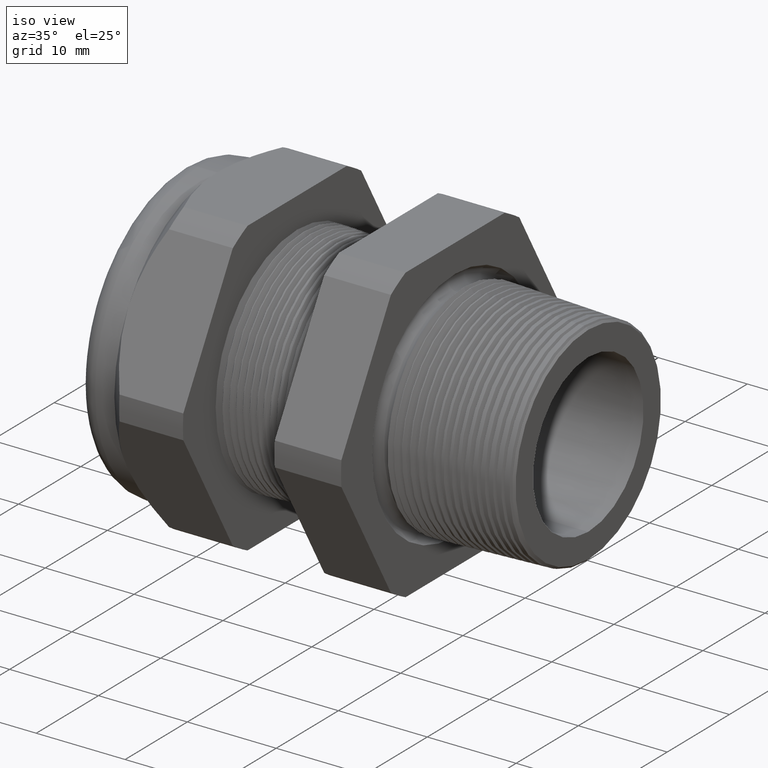
[diagram: clean part render]
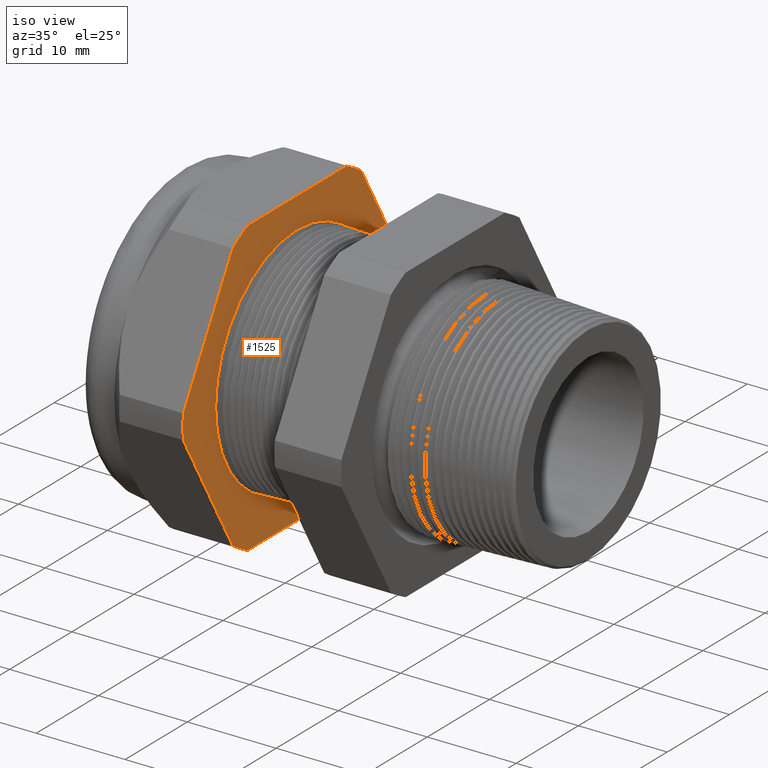
[diagram: same view with one face highlighted and labeled with its STEP entity id]
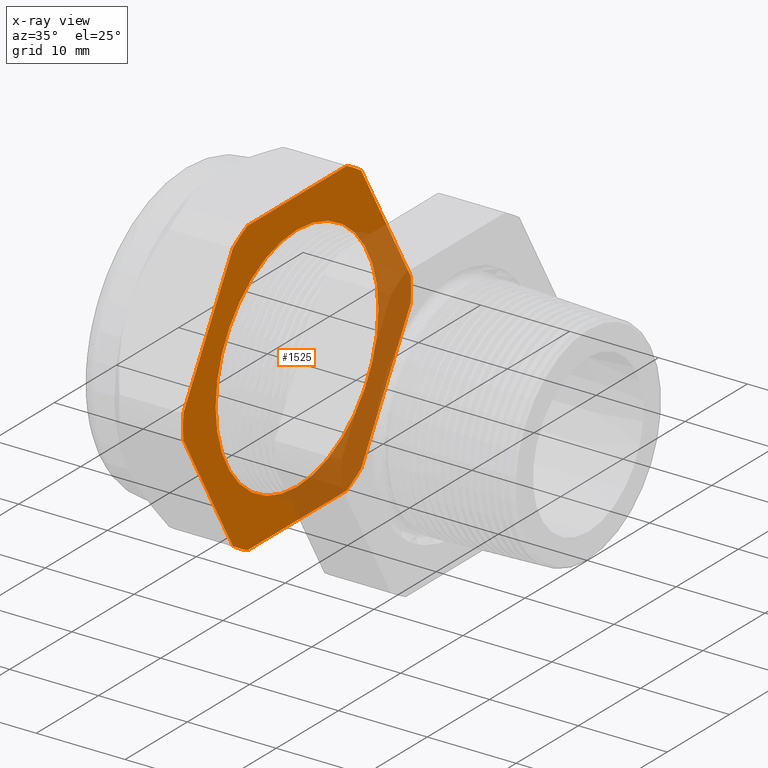
[diagram: x-ray of the same camera — body ghosted, the highlighted face saturated]
A machine part, iso view. The second image highlights one B-rep face of the part: STEP entity #1525.
The next image is the same camera in x-ray: the body ghosted, the highlighted face saturated — about 35% of this face is hidden behind the body in this view.
In plain terms, the highlighted planar face has unit normal (1, 0, 0).
Its self-contained STEP definition (entity closure, byte-faithful):
#19 = EDGE_CURVE ( 'NONE', #47, #22, #2037, .T. ) ;
#22 = VERTEX_POINT ( 'NONE', #2032 ) ;
#47 = VERTEX_POINT ( 'NONE', #2118 ) ;
#61 = VERTEX_POINT ( 'NONE', #2091 ) ;
#62 = EDGE_CURVE ( 'NONE', #22, #61, #2090, .T. ) ;
#265 = EDGE_CURVE ( 'NONE', #6162, #47, #2518, .T. ) ;
#333 = VERTEX_POINT ( 'NONE', #2688 ) ;
#340 = EDGE_CURVE ( 'NONE', #61, #333, #2677, .T. ) ;
#348 = EDGE_CURVE ( 'NONE', #333, #351, #2660, .T. ) ;
#351 = VERTEX_POINT ( 'NONE', #2714 ) ;
#365 = EDGE_CURVE ( 'NONE', #351, #371, #2732, .T. ) ;
#370 = VERTEX_POINT ( 'NONE', #2723 ) ;
#371 = VERTEX_POINT ( 'NONE', #2722 ) ;
#390 = EDGE_CURVE ( 'NONE', #371, #391, #2762, .T. ) ;
#391 = VERTEX_POINT ( 'NONE', #2758 ) ;
#397 = VERTEX_POINT ( 'NONE', #2803 ) ;
#506 = VERTEX_POINT ( 'NONE', #3023 ) ;
#507 = EDGE_CURVE ( 'NONE', #506, #509, #3022, .T. ) ;
#509 = VERTEX_POINT ( 'NONE', #3017 ) ;
#1445 = EDGE_LOOP ( 'NONE', ( #1446, #1448 ) ) ;
#1446 = ORIENTED_EDGE ( 'NONE', *, *, #1447, .F. ) ;
#1447 = EDGE_CURVE ( 'NONE', #509, #506, #4790, .T. ) ;
#1448 = ORIENTED_EDGE ( 'NONE', *, *, #507, .F. ) ;
#1449 = EDGE_LOOP ( 'NONE', ( #1450, #1451, #1511, #1512, #1513, #1514, #1515, #1516, #1517, #1518, #1519, #1520 ) ) ;
#1450 = ORIENTED_EDGE ( 'NONE', *, *, #265, .T. ) ;
#1451 = ORIENTED_EDGE ( 'NONE', *, *, #19, .T. ) ;
#1511 = ORIENTED_EDGE ( 'NONE', *, *, #62, .T. ) ;
#1512 = ORIENTED_EDGE ( 'NONE', *, *, #340, .T. ) ;
#1513 = ORIENTED_EDGE ( 'NONE', *, *, #348, .T. ) ;
#1514 = ORIENTED_EDGE ( 'NONE', *, *, #365, .T. ) ;
#1515 = ORIENTED_EDGE ( 'NONE', *, *, #390, .T. ) ;
#1516 = ORIENTED_EDGE ( 'NONE', *, *, #6091, .T. ) ;
#1517 = ORIENTED_EDGE ( 'NONE', *, *, #6109, .T. ) ;
#1518 = ORIENTED_EDGE ( 'NONE', *, *, #6093, .T. ) ;
#1519 = ORIENTED_EDGE ( 'NONE', *, *, #6122, .T. ) ;
#1520 = ORIENTED_EDGE ( 'NONE', *, *, #6160, .T. ) ;
#1525 = ADVANCED_FACE ( 'NONE', ( #4890, #4889 ), #4888, .T. ) ;
#2032 = CARTESIAN_POINT ( 'NONE',  ( -1.010314960629921100, 0.7194909755756817600, 0.05380507471562172300 ) ) ;
#2033 = DIRECTION ( 'NONE',  ( 0.0000000000000000000, 0.0000000000000000000, -1.000000000000000000 ) ) ;
#2034 = DIRECTION ( 'NONE',  ( 1.000000000000000000, 0.0000000000000000000, 0.0000000000000000000 ) ) ;
#2035 = CARTESIAN_POINT ( 'NONE',  ( -1.010314960629921100, 0.0000000000000000000, 0.0000000000000000000 ) ) ;
#2036 = AXIS2_PLACEMENT_3D ( 'NONE', #2035, #2034, #2033 ) ;
#2037 = CIRCLE ( 'NONE', #2036, 0.7214999999999999200 ) ;
#2086 = DIRECTION ( 'NONE',  ( 0.0000000000000000000, -0.4999999999999998300, 0.8660254037844386000 ) ) ;
#2087 = VECTOR ( 'NONE', #2086, 39.37007874015748900 ) ;
#2089 = CARTESIAN_POINT ( 'NONE',  ( -1.010314960629921100, 0.6916665124598854200, 0.1019984585255071900 ) ) ;
#2090 = LINE ( 'NONE', #2089, #2087 ) ;
#2091 = CARTESIAN_POINT ( 'NONE',  ( -1.010314960629921100, 0.4063420493440890700, 0.5961949252843787800 ) ) ;
#2118 = CARTESIAN_POINT ( 'NONE',  ( -1.010314960629921100, 0.7194909755756818700, -0.05380507471562158400 ) ) ;
#2515 = DIRECTION ( 'NONE',  ( 0.0000000000000000000, 0.4999999999999998300, 0.8660254037844386000 ) ) ;
#2516 = VECTOR ( 'NONE', #2515, 39.37007874015748900 ) ;
#2517 = CARTESIAN_POINT ( 'NONE',  ( -1.010314960629921100, 0.6916665124598854200, -0.1019984585255072100 ) ) ;
#2518 = LINE ( 'NONE', #2517, #2516 ) ;
#2659 = CARTESIAN_POINT ( 'NONE',  ( -1.010314960629921100, 0.5150000000000000100, 0.6499999999999999100 ) ) ;
#2660 = LINE ( 'NONE', #2659, #2716 ) ;
#2673 = DIRECTION ( 'NONE',  ( 0.0000000000000000000, 0.0000000000000000000, -1.000000000000000000 ) ) ;
#2674 = DIRECTION ( 'NONE',  ( 1.000000000000000000, 0.0000000000000000000, 0.0000000000000000000 ) ) ;
#2675 = CARTESIAN_POINT ( 'NONE',  ( -1.010314960629921100, 0.0000000000000000000, 0.0000000000000000000 ) ) ;
#2676 = AXIS2_PLACEMENT_3D ( 'NONE', #2675, #2674, #2673 ) ;
#2677 = CIRCLE ( 'NONE', #2676, 0.7215000000000000300 ) ;
#2688 = CARTESIAN_POINT ( 'NONE',  ( -1.010314960629921100, 0.3131489262315937900, 0.6499999999999999100 ) ) ;
#2714 = CARTESIAN_POINT ( 'NONE',  ( -1.010314960629921100, -0.3131489262315937400, 0.6500000000000000200 ) ) ;
#2715 = DIRECTION ( 'NONE',  ( 0.0000000000000000000, -1.000000000000000000, 0.0000000000000000000 ) ) ;
#2716 = VECTOR ( 'NONE', #2715, 39.37007874015748100 ) ;
#2722 = CARTESIAN_POINT ( 'NONE',  ( -1.010314960629921100, -0.4063420493440888500, 0.5961949252843790100 ) ) ;
#2723 = CARTESIAN_POINT ( 'NONE',  ( -1.010314960629921100, -0.7194909755756819800, -0.05380507471562111200 ) ) ;
#2728 = DIRECTION ( 'NONE',  ( 0.0000000000000000000, 0.0000000000000000000, -1.000000000000000000 ) ) ;
#2729 = DIRECTION ( 'NONE',  ( 1.000000000000000000, 0.0000000000000000000, 0.0000000000000000000 ) ) ;
#2730 = CARTESIAN_POINT ( 'NONE',  ( -1.010314960629921100, 0.0000000000000000000, 0.0000000000000000000 ) ) ;
#2731 = AXIS2_PLACEMENT_3D ( 'NONE', #2730, #2729, #2728 ) ;
#2732 = CIRCLE ( 'NONE', #2731, 0.7215000000000000300 ) ;
#2758 = CARTESIAN_POINT ( 'NONE',  ( -1.010314960629921100, -0.7194909755756819800, 0.05380507471562089000 ) ) ;
#2759 = DIRECTION ( 'NONE',  ( 0.0000000000000000000, -0.4999999999999995600, -0.8660254037844388200 ) ) ;
#2760 = VECTOR ( 'NONE', #2759, 39.37007874015748900 ) ;
#2761 = CARTESIAN_POINT ( 'NONE',  ( -1.010314960629921100, -0.4341665124598858600, 0.5480015414744928700 ) ) ;
#2762 = LINE ( 'NONE', #2761, #2760 ) ;
#2803 = CARTESIAN_POINT ( 'NONE',  ( -1.010314960629921100, -0.4063420493440883500, -0.5961949252843792300 ) ) ;
#3017 = CARTESIAN_POINT ( 'NONE',  ( -1.010314960629921100, 0.0000000000000000000, 0.5150000000000000100 ) ) ;
#3018 = DIRECTION ( 'NONE',  ( 0.0000000000000000000, 0.0000000000000000000, -1.000000000000000000 ) ) ;
#3019 = DIRECTION ( 'NONE',  ( 1.000000000000000000, 0.0000000000000000000, 0.0000000000000000000 ) ) ;
#3020 = CARTESIAN_POINT ( 'NONE',  ( -1.010314960629921100, 0.0000000000000000000, 0.0000000000000000000 ) ) ;
#3021 = AXIS2_PLACEMENT_3D ( 'NONE', #3020, #3019, #3018 ) ;
#3022 = CIRCLE ( 'NONE', #3021, 0.5150000000000000100 ) ;
#3023 = CARTESIAN_POINT ( 'NONE',  ( -1.010314960629921100, 6.306931015608869800E-017, -0.5150000000000000100 ) ) ;
#4790 = CIRCLE ( 'NONE', #4853, 0.5150000000000000100 ) ;
#4850 = DIRECTION ( 'NONE',  ( 0.0000000000000000000, 0.0000000000000000000, -1.000000000000000000 ) ) ;
#4851 = DIRECTION ( 'NONE',  ( 1.000000000000000000, 0.0000000000000000000, 0.0000000000000000000 ) ) ;
#4852 = CARTESIAN_POINT ( 'NONE',  ( -1.010314960629921100, 0.0000000000000000000, 0.0000000000000000000 ) ) ;
#4853 = AXIS2_PLACEMENT_3D ( 'NONE', #4852, #4851, #4850 ) ;
#4888 = PLANE ( 'NONE',  #4952 ) ;
#4889 = FACE_OUTER_BOUND ( 'NONE', #1449, .T. ) ;
#4890 = FACE_BOUND ( 'NONE', #1445, .T. ) ;
#4949 = DIRECTION ( 'NONE',  ( 0.0000000000000000000, 0.0000000000000000000, -1.000000000000000000 ) ) ;
#4950 = DIRECTION ( 'NONE',  ( 1.000000000000000000, 0.0000000000000000000, 0.0000000000000000000 ) ) ;
#4951 = CARTESIAN_POINT ( 'NONE',  ( -1.010314960629921100, 0.5150000000000000100, 0.0000000000000000000 ) ) ;
#4952 = AXIS2_PLACEMENT_3D ( 'NONE', #4951, #4950, #4949 ) ;
#5713 = DIRECTION ( 'NONE',  ( 0.0000000000000000000, 0.0000000000000000000, -1.000000000000000000 ) ) ;
#5714 = DIRECTION ( 'NONE',  ( 1.000000000000000000, 0.0000000000000000000, 0.0000000000000000000 ) ) ;
#5715 = CARTESIAN_POINT ( 'NONE',  ( -1.010314960629921100, 0.0000000000000000000, 0.0000000000000000000 ) ) ;
#5716 = AXIS2_PLACEMENT_3D ( 'NONE', #5715, #5714, #5713 ) ;
#5717 = CIRCLE ( 'NONE', #5716, 0.7215000000000000300 ) ;
#5722 = DIRECTION ( 'NONE',  ( 0.0000000000000000000, 0.0000000000000000000, -1.000000000000000000 ) ) ;
#5723 = DIRECTION ( 'NONE',  ( 1.000000000000000000, 0.0000000000000000000, 0.0000000000000000000 ) ) ;
#5724 = CARTESIAN_POINT ( 'NONE',  ( -1.010314960629921100, 0.0000000000000000000, 0.0000000000000000000 ) ) ;
#5725 = AXIS2_PLACEMENT_3D ( 'NONE', #5724, #5723, #5722 ) ;
#5726 = CIRCLE ( 'NONE', #5725, 0.7215000000000000300 ) ;
#5733 = CARTESIAN_POINT ( 'NONE',  ( -1.010314960629921100, -0.3131489262315934100, -0.6500000000000001300 ) ) ;
#5747 = DIRECTION ( 'NONE',  ( 0.0000000000000000000, 0.5000000000000002200, -0.8660254037844384900 ) ) ;
#5748 = VECTOR ( 'NONE', #5747, 39.37007874015748900 ) ;
#5749 = CARTESIAN_POINT ( 'NONE',  ( -1.010314960629921100, -0.4341665124598849100, -0.5480015414744932000 ) ) ;
#5754 = LINE ( 'NONE', #5749, #5748 ) ;
#5786 = DIRECTION ( 'NONE',  ( 0.0000000000000000000, 1.000000000000000000, 0.0000000000000000000 ) ) ;
#5787 = VECTOR ( 'NONE', #5786, 39.37007874015748100 ) ;
#5788 = CARTESIAN_POINT ( 'NONE',  ( -1.010314960629921100, 0.5150000000000000100, -0.6500000000000001300 ) ) ;
#5789 = LINE ( 'NONE', #5788, #5787 ) ;
#5790 = CARTESIAN_POINT ( 'NONE',  ( -1.010314960629921100, 0.3131489262315934100, -0.6500000000000001300 ) ) ;
#5879 = CARTESIAN_POINT ( 'NONE',  ( -1.010314960629921100, 0.4063420493440892400, -0.5961949252843785600 ) ) ;
#5881 = DIRECTION ( 'NONE',  ( 0.0000000000000000000, 0.0000000000000000000, -1.000000000000000000 ) ) ;
#5882 = DIRECTION ( 'NONE',  ( 1.000000000000000000, 0.0000000000000000000, 0.0000000000000000000 ) ) ;
#5883 = AXIS2_PLACEMENT_3D ( 'NONE', #5890, #5882, #5881 ) ;
#5884 = CIRCLE ( 'NONE', #5883, 0.7215000000000000300 ) ;
#5890 = CARTESIAN_POINT ( 'NONE',  ( -1.010314960629921100, 0.0000000000000000000, 0.0000000000000000000 ) ) ;
#6087 = VERTEX_POINT ( 'NONE', #5733 ) ;
#6091 = EDGE_CURVE ( 'NONE', #391, #370, #5726, .T. ) ;
#6093 = EDGE_CURVE ( 'NONE', #397, #6087, #5717, .T. ) ;
#6109 = EDGE_CURVE ( 'NONE', #370, #397, #5754, .T. ) ;
#6121 = VERTEX_POINT ( 'NONE', #5790 ) ;
#6122 = EDGE_CURVE ( 'NONE', #6087, #6121, #5789, .T. ) ;
#6160 = EDGE_CURVE ( 'NONE', #6121, #6162, #5884, .T. ) ;
#6162 = VERTEX_POINT ( 'NONE', #5879 ) ;